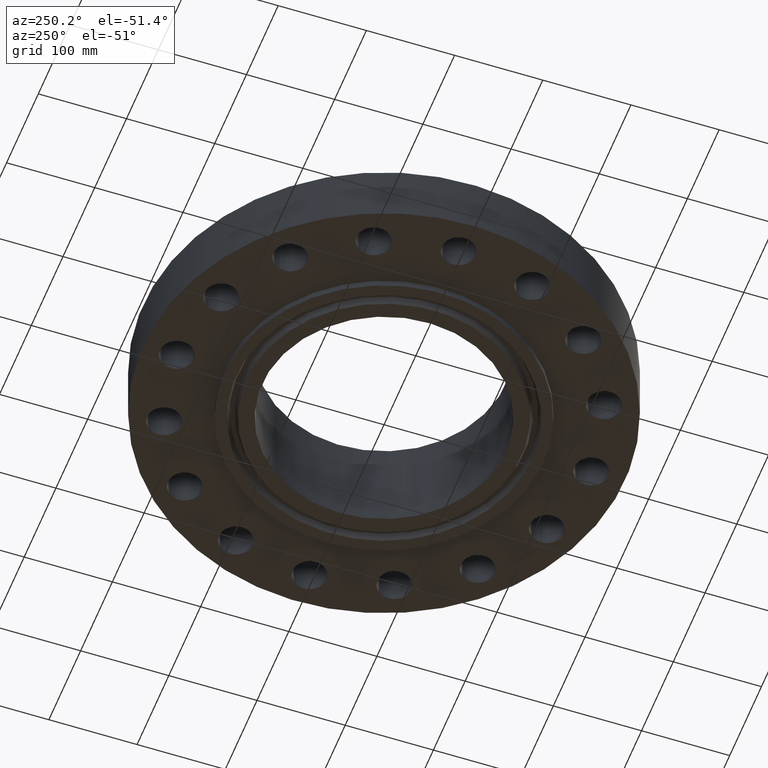
[diagram: clean part render]
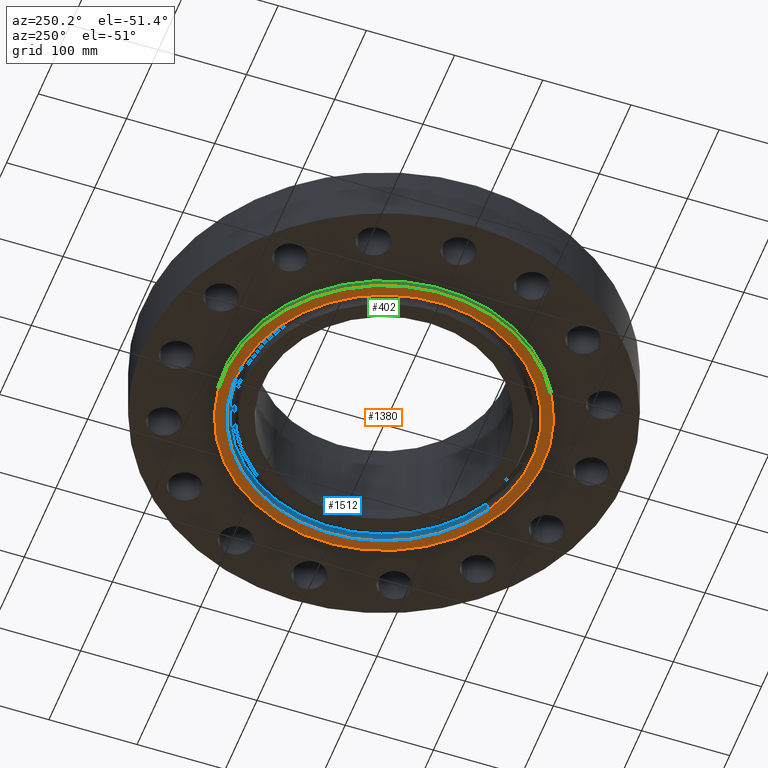
[diagram: same view with three faces highlighted in distinct colors, each labeled with its STEP entity id]
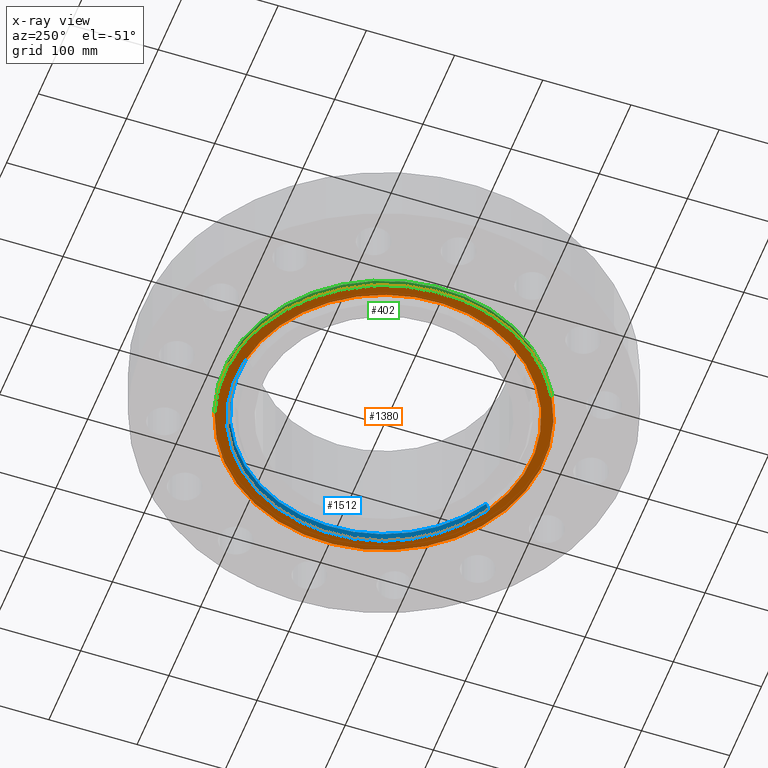
[diagram: x-ray of the same camera — body ghosted, the three highlighted faces saturated]
A machine part, auxiliary view with three faces highlighted in distinct colors.
The next image is the same camera in x-ray (body ghosted, the three faces saturated) — at least one of them is partly hidden behind the body in this view.
Their STEP definitions:

[orange] entity #1380 — the highlighted planar face has unit normal (0, 0, -1).
#370=AXIS2_PLACEMENT_3D('Circle Axis2P3D',#368,#369,$) ;
#405=AXIS2_PLACEMENT_3D('Circle Axis2P3D',#403,#404,$) ;
#1356=AXIS2_PLACEMENT_3D('Plane Axis2P3D',#1353,#1354,#1355) ;
#1364=AXIS2_PLACEMENT_3D('Circle Axis2P3D',#1362,#1363,$) ;
#1373=AXIS2_PLACEMENT_3D('Circle Axis2P3D',#1371,#1372,$) ;
#368=CARTESIAN_POINT('Axis2P3D Location',(0.,0.,-0.312500000001)) ;
#372=CARTESIAN_POINT('Vertex',(-3.41590696257,-6.25277575349,-0.312500000001)) ;
#374=CARTESIAN_POINT('Vertex',(3.41590696257,6.25277575349,-0.312500000001)) ;
#403=CARTESIAN_POINT('Axis2P3D Location',(0.,0.,-0.312500000001)) ;
#1353=CARTESIAN_POINT('Axis2P3D Location',(0.,5.44000000002,-0.312500000001)) ;
#1362=CARTESIAN_POINT('Axis2P3D Location',(-8.39223703654E-016,-1.1189649382E-015,-0.312500000001)) ;
#1366=CARTESIAN_POINT('Vertex',(3.16871515486,-5.80029418458,-0.312500000001)) ;
#1368=CARTESIAN_POINT('Vertex',(-3.16871515486,5.80029418458,-0.312500000001)) ;
#1371=CARTESIAN_POINT('Axis2P3D Location',(-2.79741234551E-016,-1.1189649382E-015,-0.312500000001)) ;
#369=DIRECTION('Axis2P3D Direction',(0.,0.,-0.0393700787402)) ;
#404=DIRECTION('Axis2P3D Direction',(0.,0.,-0.0393700787402)) ;
#1354=DIRECTION('Axis2P3D Direction',(0.,0.,-0.0393700787402)) ;
#1355=DIRECTION('Axis2P3D XDirection',(0.0393700787402,0.,0.)) ;
#1363=DIRECTION('Axis2P3D Direction',(0.,0.,-0.0393700787402)) ;
#1372=DIRECTION('Axis2P3D Direction',(0.,0.,-0.0393700787402)) ;
#1359=ORIENTED_EDGE('',*,*,#376,.T.) ;
#1360=ORIENTED_EDGE('',*,*,#407,.T.) ;
#1377=ORIENTED_EDGE('',*,*,#1370,.F.) ;
#1378=ORIENTED_EDGE('',*,*,#1375,.F.) ;
#1379=FACE_BOUND('',#1376,.T.) ;
#1380=ADVANCED_FACE('PartBody',(#1361,#1379),#1357,.T.) ;
#371=CIRCLE('generated circle',#370,7.12500000003) ;
#406=CIRCLE('generated circle',#405,7.12500000003) ;
#1365=CIRCLE('generated circle',#1364,6.60940000003) ;
#1374=CIRCLE('generated circle',#1373,6.60940000003) ;
#376=EDGE_CURVE('',#373,#375,#371,.T.) ;
#407=EDGE_CURVE('',#375,#373,#406,.T.) ;
#1370=EDGE_CURVE('',#1367,#1369,#1365,.T.) ;
#1375=EDGE_CURVE('',#1369,#1367,#1374,.T.) ;
#1358=EDGE_LOOP('',(#1359,#1360)) ;
#1376=EDGE_LOOP('',(#1377,#1378)) ;
#1361=FACE_OUTER_BOUND('',#1358,.T.) ;
#1357=PLANE('',#1356) ;
#373=VERTEX_POINT('',#372) ;
#375=VERTEX_POINT('',#374) ;
#1367=VERTEX_POINT('',#1366) ;
#1369=VERTEX_POINT('',#1368) ;

[blue] entity #1512 — the highlighted conical surface has half-angle 23 deg.
#1373=AXIS2_PLACEMENT_3D('Circle Axis2P3D',#1371,#1372,$) ;
#1447=AXIS2_PLACEMENT_3D('Cone Axis2P3D',#1444,#1445,#1446) ;
#1468=AXIS2_PLACEMENT_3D('Circle Axis2P3D',#1466,#1467,$) ;
#1366=CARTESIAN_POINT('Vertex',(3.16871515486,-5.80029418458,-0.312500000001)) ;
#1368=CARTESIAN_POINT('Vertex',(-3.16871515486,5.80029418458,-0.312500000001)) ;
#1371=CARTESIAN_POINT('Axis2P3D Location',(-2.79741234551E-016,-1.1189649382E-015,-0.312500000001)) ;
#1413=CARTESIAN_POINT('Vertex',(-3.10900097991,5.69098812052,-0.0190701156784)) ;
#1415=CARTESIAN_POINT('Vertex',(3.10900097991,-5.69098812052,-0.0190701156784)) ;
#1444=CARTESIAN_POINT('Axis2P3D Location',(0.,0.,-0.0190701156784)) ;
#1449=CARTESIAN_POINT('Line Origine',(-3.13885806739,5.74564115255,-0.16578505784)) ;
#1454=CARTESIAN_POINT('Line Origine',(3.13885806739,-5.74564115255,-0.16578505784)) ;
#1466=CARTESIAN_POINT('Axis2P3D Location',(0.,0.,-0.0190701156784)) ;
#1372=DIRECTION('Axis2P3D Direction',(0.,0.,-0.0393700787402)) ;
#1445=DIRECTION('Axis2P3D Direction',(-0.,-0.,-0.0393700787402)) ;
#1446=DIRECTION('Axis2P3D XDirection',(-0.0188750212049,0.0345504945626,0.)) ;
#1450=DIRECTION('Vector Direction',(-0.00737505833565,0.0134999537303,-0.0362403485611)) ;
#1455=DIRECTION('Vector Direction',(0.00737505833565,-0.0134999537303,-0.0362403485611)) ;
#1467=DIRECTION('Axis2P3D Direction',(0.,0.,0.0393700787402)) ;
#1451=VECTOR('Line Direction',#1450,0.0393700787402) ;
#1456=VECTOR('Line Direction',#1455,0.0393700787402) ;
#1507=ORIENTED_EDGE('',*,*,#1375,.T.) ;
#1508=ORIENTED_EDGE('',*,*,#1458,.T.) ;
#1509=ORIENTED_EDGE('',*,*,#1470,.T.) ;
#1510=ORIENTED_EDGE('',*,*,#1453,.F.) ;
#1512=ADVANCED_FACE('PartBody',(#1511),#1448,.F.) ;
#1374=CIRCLE('generated circle',#1373,6.60940000003) ;
#1469=CIRCLE('generated circle',#1468,6.48484640381) ;
#1448=CONICAL_SURFACE('Cone',#1447,6.48484640381,0.401425727959) ;
#1375=EDGE_CURVE('',#1369,#1367,#1374,.T.) ;
#1453=EDGE_CURVE('',#1369,#1414,#1452,.F.) ;
#1458=EDGE_CURVE('',#1367,#1416,#1457,.F.) ;
#1470=EDGE_CURVE('',#1416,#1414,#1469,.T.) ;
#1506=EDGE_LOOP('',(#1507,#1508,#1509,#1510)) ;
#1511=FACE_OUTER_BOUND('',#1506,.T.) ;
#1452=LINE('Line',#1449,#1451) ;
#1457=LINE('Line',#1454,#1456) ;
#1367=VERTEX_POINT('',#1366) ;
#1369=VERTEX_POINT('',#1368) ;
#1414=VERTEX_POINT('',#1413) ;
#1416=VERTEX_POINT('',#1415) ;

[green] entity #402 — the highlighted cylindrical surface (partial cylindrical patch) has radius 180.975 mm, axis along (0, 0, -1).
#366=AXIS2_PLACEMENT_3D('Cylinder Axis2P3D',#363,#364,#365) ;
#370=AXIS2_PLACEMENT_3D('Circle Axis2P3D',#368,#369,$) ;
#386=AXIS2_PLACEMENT_3D('Circle Axis2P3D',#384,#385,$) ;
#363=CARTESIAN_POINT('Axis2P3D Location',(0.,0.,1.96875000001)) ;
#368=CARTESIAN_POINT('Axis2P3D Location',(0.,0.,-0.312500000001)) ;
#372=CARTESIAN_POINT('Vertex',(-3.41590696257,-6.25277575349,-0.312500000001)) ;
#374=CARTESIAN_POINT('Vertex',(3.41590696257,6.25277575349,-0.312500000001)) ;
#377=CARTESIAN_POINT('Line Origine',(-3.41590696257,-6.25277575349,-0.156250000001)) ;
#381=CARTESIAN_POINT('Vertex',(-3.41590696257,-6.25277575349,8.39223703654E-016)) ;
#384=CARTESIAN_POINT('Axis2P3D Location',(0.,0.,8.39223703654E-016)) ;
#388=CARTESIAN_POINT('Vertex',(3.41590696257,6.25277575349,8.39223703654E-016)) ;
#391=CARTESIAN_POINT('Line Origine',(3.41590696257,6.25277575349,-0.156250000001)) ;
#364=DIRECTION('Axis2P3D Direction',(0.,0.,-0.0393700787402)) ;
#365=DIRECTION('Axis2P3D XDirection',(0.0188750212049,0.0345504945626,0.)) ;
#369=DIRECTION('Axis2P3D Direction',(0.,0.,-0.0393700787402)) ;
#378=DIRECTION('Vector Direction',(0.,0.,-0.0393700787402)) ;
#385=DIRECTION('Axis2P3D Direction',(0.,0.,-0.0393700787402)) ;
#392=DIRECTION('Vector Direction',(0.,0.,-0.0393700787402)) ;
#379=VECTOR('Line Direction',#378,0.0393700787402) ;
#393=VECTOR('Line Direction',#392,0.0393700787402) ;
#397=ORIENTED_EDGE('',*,*,#376,.F.) ;
#398=ORIENTED_EDGE('',*,*,#383,.T.) ;
#399=ORIENTED_EDGE('',*,*,#390,.T.) ;
#400=ORIENTED_EDGE('',*,*,#395,.F.) ;
#402=ADVANCED_FACE('PartBody',(#401),#367,.T.) ;
#371=CIRCLE('generated circle',#370,7.12500000003) ;
#387=CIRCLE('generated circle',#386,7.12500000003) ;
#367=CYLINDRICAL_SURFACE('generated cylinder',#366,7.12500000003) ;
#376=EDGE_CURVE('',#373,#375,#371,.T.) ;
#383=EDGE_CURVE('',#373,#382,#380,.F.) ;
#390=EDGE_CURVE('',#382,#389,#387,.T.) ;
#395=EDGE_CURVE('',#375,#389,#394,.F.) ;
#396=EDGE_LOOP('',(#397,#398,#399,#400)) ;
#401=FACE_OUTER_BOUND('',#396,.T.) ;
#380=LINE('Line',#377,#379) ;
#394=LINE('Line',#391,#393) ;
#373=VERTEX_POINT('',#372) ;
#375=VERTEX_POINT('',#374) ;
#382=VERTEX_POINT('',#381) ;
#389=VERTEX_POINT('',#388) ;